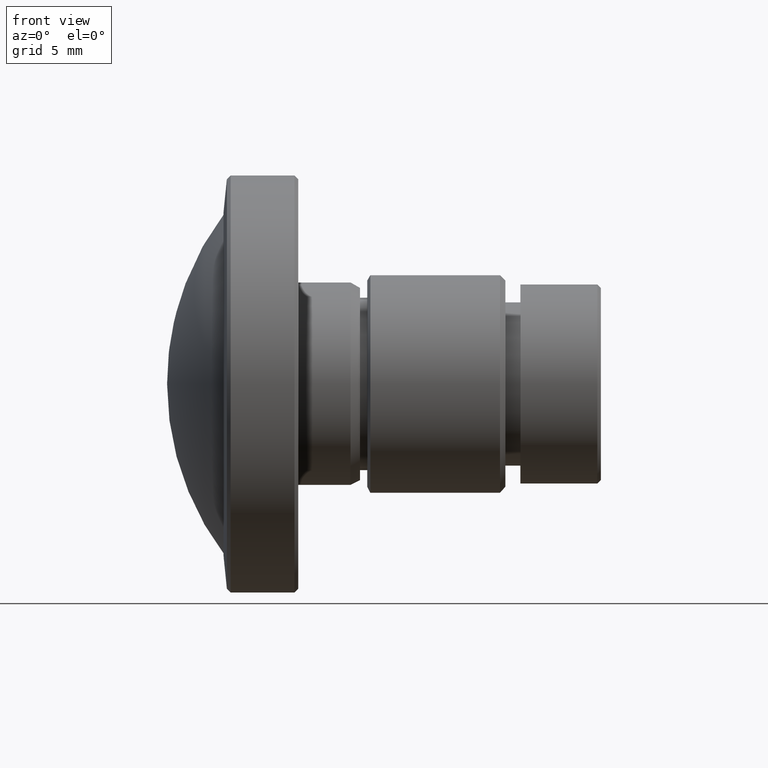
[diagram: clean part render]
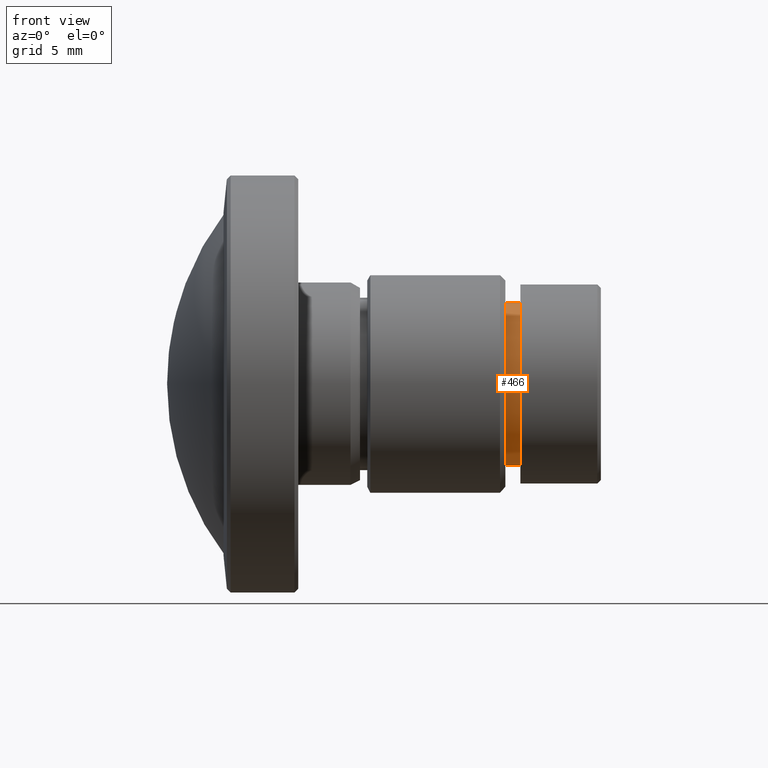
[diagram: same view with one face highlighted and labeled with its STEP entity id]
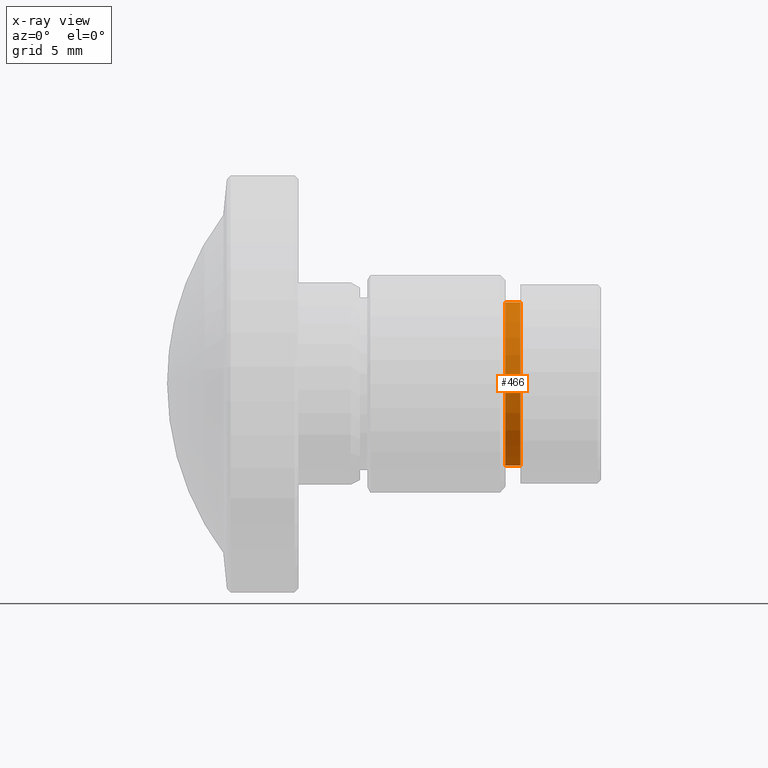
[diagram: x-ray of the same camera — body ghosted, the highlighted face saturated]
A machine part, front view. The second image highlights one B-rep face of the part: STEP entity #466.
The next image is the same camera in x-ray: the body ghosted, the highlighted face saturated — about 0% of this face is hidden behind the body in this view.
In plain terms, the highlighted cylindrical surface (bore or boss wall) has radius 4.5 mm, axis along (-1, 0, 0).
Its self-contained STEP definition (entity closure, byte-faithful):
#58=ORIENTED_EDGE('',*,*,#99,.F.);
#59=ORIENTED_EDGE('',*,*,#98,.T.);
#98=EDGE_CURVE('',#123,#123,#148,.T.);
#99=EDGE_CURVE('',#124,#124,#149,.T.);
#123=VERTEX_POINT('',#674);
#124=VERTEX_POINT('',#677);
#148=CIRCLE('',#507,4.49999999999999);
#149=CIRCLE('',#509,4.49999999999999);
#183=EDGE_LOOP('',(#58));
#184=EDGE_LOOP('',(#59));
#233=FACE_BOUND('',#183,.T.);
#234=FACE_BOUND('',#184,.T.);
#266=CYLINDRICAL_SURFACE('',#508,4.49999999999999);
#466=ADVANCED_FACE('',(#233,#234),#266,.T.);
#507=AXIS2_PLACEMENT_3D('',#673,#581,#582);
#508=AXIS2_PLACEMENT_3D('',#675,#583,#584);
#509=AXIS2_PLACEMENT_3D('',#676,#585,#586);
#581=DIRECTION('',(-1.,0.,0.));
#582=DIRECTION('',(0.,0.,1.));
#583=DIRECTION('',(-1.,0.,0.));
#584=DIRECTION('',(0.,0.,1.));
#585=DIRECTION('',(-1.,0.,0.));
#586=DIRECTION('',(0.,0.,1.));
#673=CARTESIAN_POINT('',(-7.27445850495415,0.,0.));
#674=CARTESIAN_POINT('',(-7.27445850495415,0.,4.49999999999999));
#675=CARTESIAN_POINT('',(-60.,0.,0.));
#676=CARTESIAN_POINT('',(-8.10170368554189,0.,0.));
#677=CARTESIAN_POINT('',(-8.10170368554189,0.,4.49999999999999));